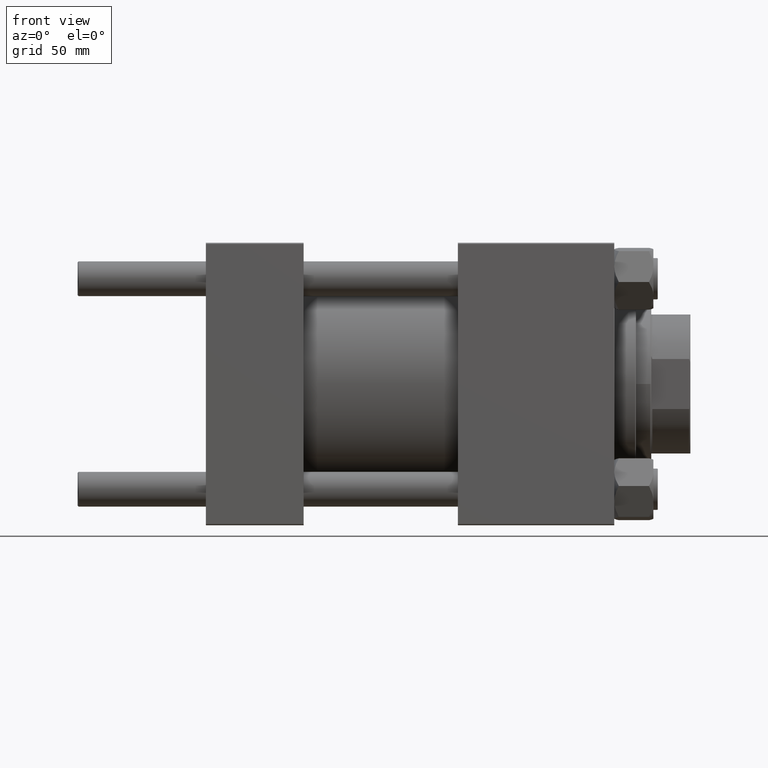
[diagram: clean part render]
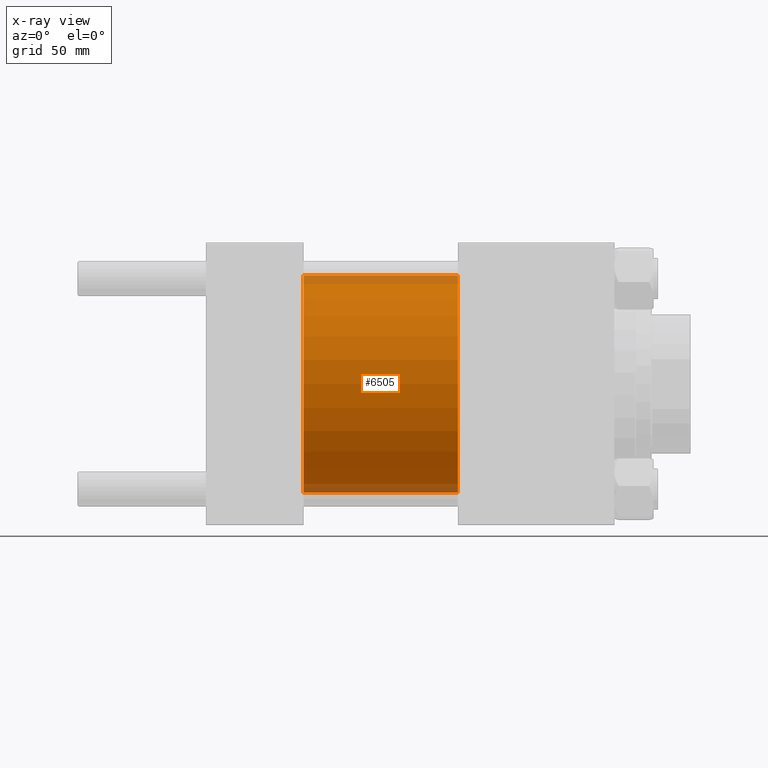
[diagram: x-ray — body ghosted, one internal face saturated and labeled with its STEP entity id]
A machine part, front view, then the same camera in x-ray: the body is ghosted and one INTERNAL B-rep face — a face not visible from any outside direction — is saturated and labeled: STEP entity #6505.
In plain terms, the highlighted cylindrical surface (partial cylindrical patch) has radius 50 mm, axis along (-1, -0, -0).
Its self-contained STEP definition (entity closure, byte-faithful):
#2409 = AXIS2_PLACEMENT_3D ( 'NONE', #26374, #37843, #46272 ) ;
#2959 = DIRECTION ( 'NONE',  ( 0.000000000000000000, 0.000000000000000000, -1.000000000000000000 ) ) ;
#6505 = ADVANCED_FACE ( 'NONE', ( #26895 ), #26625, .F. ) ;
#7826 = VERTEX_POINT ( 'NONE', #45654 ) ;
#9078 = ORIENTED_EDGE ( 'NONE', *, *, #30228, .F. ) ;
#9086 = VERTEX_POINT ( 'NONE', #37582 ) ;
#9473 = AXIS2_PLACEMENT_3D ( 'NONE', #34065, #26167, #2959 ) ;
#10897 = EDGE_CURVE ( 'NONE', #15551, #9086, #10903, .T. ) ;
#10903 = LINE ( 'NONE', #13977, #13415 ) ;
#13415 = VECTOR ( 'NONE', #48910, 1000.000000000000000 ) ;
#13977 = CARTESIAN_POINT ( 'NONE',  ( 115.9999999999999858, 6.123233995736766085E-15, -50.00000000000000000 ) ) ;
#15551 = VERTEX_POINT ( 'NONE', #49437 ) ;
#15998 = DIRECTION ( 'NONE',  ( -1.000000000000000000, -0.000000000000000000, -0.000000000000000000 ) ) ;
#16036 = EDGE_CURVE ( 'NONE', #7826, #15551, #36329, .T. ) ;
#18831 = DIRECTION ( 'NONE',  ( 1.000000000000000000, 0.000000000000000000, 0.000000000000000000 ) ) ;
#24416 = LINE ( 'NONE', #35375, #29384 ) ;
#24611 = CIRCLE ( 'NONE', #38436, 50.00000000000000000 ) ;
#26167 = DIRECTION ( 'NONE',  ( 1.000000000000000000, 0.000000000000000000, 0.000000000000000000 ) ) ;
#26374 = CARTESIAN_POINT ( 'NONE',  ( 115.9999999999999858, 0.000000000000000000, 0.000000000000000000 ) ) ;
#26625 = CYLINDRICAL_SURFACE ( 'NONE', #2409, 50.00000000000000000 ) ;
#26895 = FACE_OUTER_BOUND ( 'NONE', #27337, .T. ) ;
#27337 = EDGE_LOOP ( 'NONE', ( #29457, #32243, #33081, #9078 ) ) ;
#29384 = VECTOR ( 'NONE', #15998, 1000.000000000000000 ) ;
#29457 = ORIENTED_EDGE ( 'NONE', *, *, #16036, .T. ) ;
#30228 = EDGE_CURVE ( 'NONE', #7826, #47443, #24416, .T. ) ;
#32243 = ORIENTED_EDGE ( 'NONE', *, *, #10897, .T. ) ;
#33081 = ORIENTED_EDGE ( 'NONE', *, *, #34266, .F. ) ;
#34065 = CARTESIAN_POINT ( 'NONE',  ( 115.9999999999999858, 0.000000000000000000, 0.000000000000000000 ) ) ;
#34266 = EDGE_CURVE ( 'NONE', #47443, #9086, #24611, .T. ) ;
#35375 = CARTESIAN_POINT ( 'NONE',  ( 115.9999999999999858, 0.000000000000000000, 50.00000000000000000 ) ) ;
#35972 = CARTESIAN_POINT ( 'NONE',  ( 45.00000000000000000, 0.000000000000000000, 50.00000000000000000 ) ) ;
#36329 = CIRCLE ( 'NONE', #9473, 50.00000000000000000 ) ;
#37582 = CARTESIAN_POINT ( 'NONE',  ( 45.00000000000000000, 6.123233995736766085E-15, -50.00000000000000000 ) ) ;
#37843 = DIRECTION ( 'NONE',  ( -1.000000000000000000, -0.000000000000000000, -0.000000000000000000 ) ) ;
#38213 = CARTESIAN_POINT ( 'NONE',  ( 45.00000000000000000, 0.000000000000000000, 0.000000000000000000 ) ) ;
#38436 = AXIS2_PLACEMENT_3D ( 'NONE', #38213, #18831, #49958 ) ;
#45654 = CARTESIAN_POINT ( 'NONE',  ( 115.9999999999999858, 0.000000000000000000, 50.00000000000000000 ) ) ;
#46272 = DIRECTION ( 'NONE',  ( 0.000000000000000000, 0.000000000000000000, 1.000000000000000000 ) ) ;
#47443 = VERTEX_POINT ( 'NONE', #35972 ) ;
#48910 = DIRECTION ( 'NONE',  ( -1.000000000000000000, -0.000000000000000000, -0.000000000000000000 ) ) ;
#49437 = CARTESIAN_POINT ( 'NONE',  ( 115.9999999999999858, 6.123233995736766085E-15, -50.00000000000000000 ) ) ;
#49958 = DIRECTION ( 'NONE',  ( 0.000000000000000000, 0.000000000000000000, -1.000000000000000000 ) ) ;